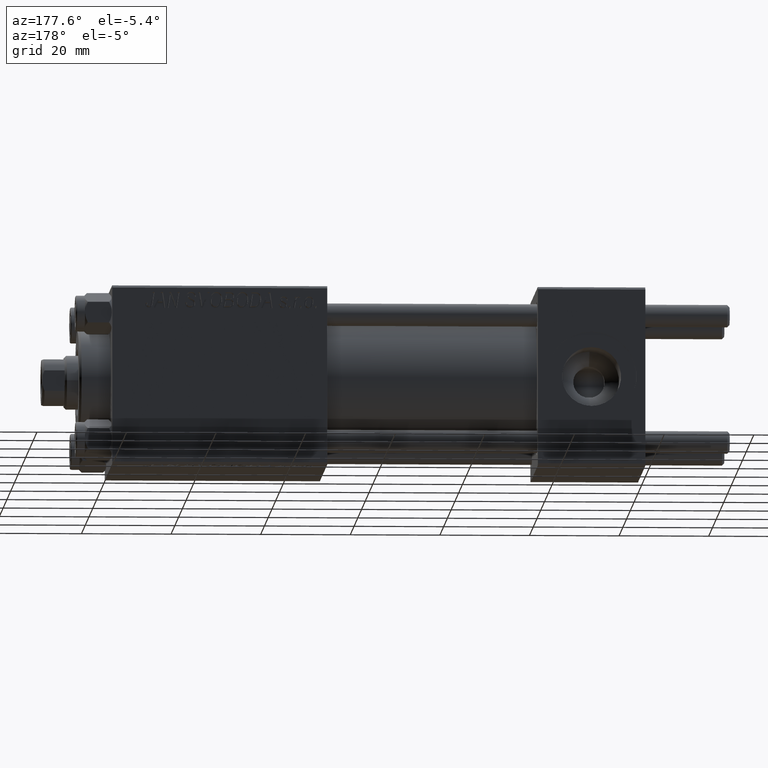
[diagram: clean part render]
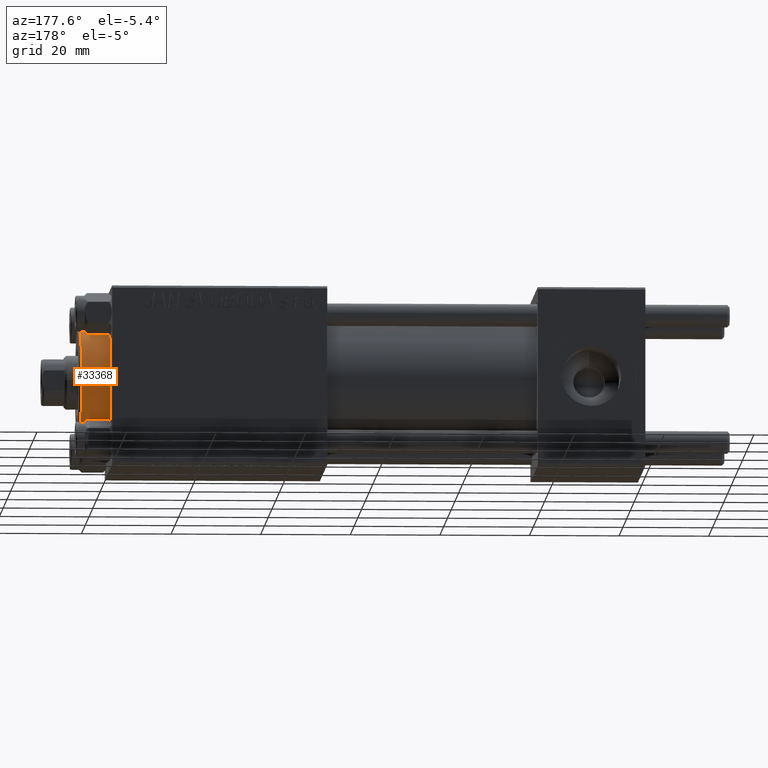
[diagram: same view with one face highlighted and labeled with its STEP entity id]
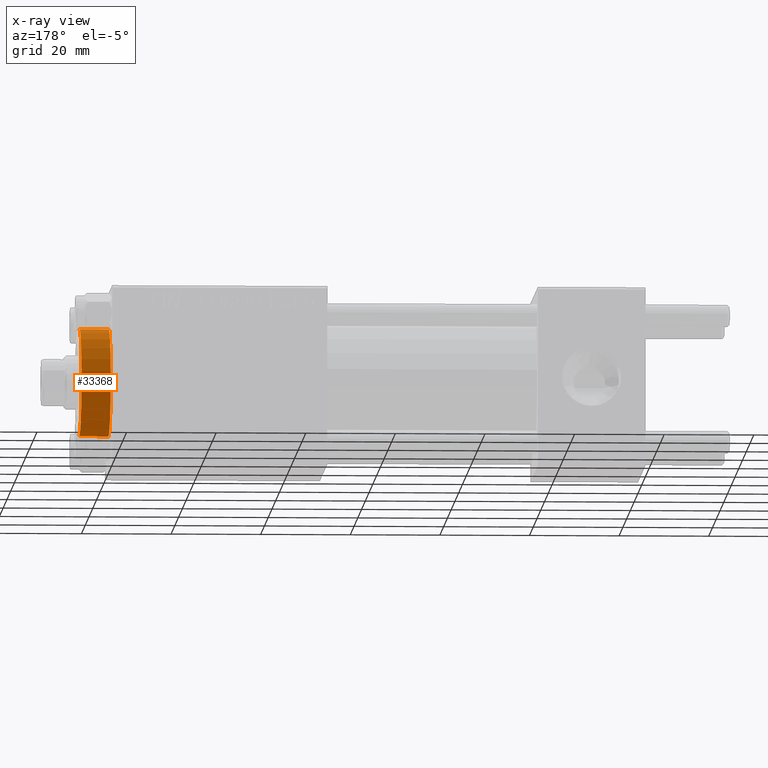
[diagram: x-ray of the same camera — body ghosted, the highlighted face saturated]
A machine part, auxiliary view. The second image highlights one B-rep face of the part: STEP entity #33368.
The next image is the same camera in x-ray: the body ghosted, the highlighted face saturated — about 0% of this face is hidden behind the body in this view.
In plain terms, the highlighted cylindrical surface (partial cylindrical patch) has radius 12 mm, axis along (-1, -0, 0).
Its self-contained STEP definition (entity closure, byte-faithful):
#426 = VECTOR ( 'NONE', #20489, 1000.000000000000000 ) ;
#3116 = AXIS2_PLACEMENT_3D ( 'NONE', #36482, #21129, #35479 ) ;
#3813 = ORIENTED_EDGE ( 'NONE', *, *, #49336, .F. ) ;
#4036 = VERTEX_POINT ( 'NONE', #39237 ) ;
#4254 = CARTESIAN_POINT ( 'NONE',  ( 0.000000000000000000, 0.000000000000000000, 35.70000000000000284 ) ) ;
#5868 = EDGE_CURVE ( 'NONE', #16551, #10612, #20742, .T. ) ;
#8293 = CARTESIAN_POINT ( 'NONE',  ( 0.000000000000000000, 0.000000000000000000, 35.19999999999999574 ) ) ;
#8751 = CIRCLE ( 'NONE', #3116, 12.00000000000000178 ) ;
#10612 = VERTEX_POINT ( 'NONE', #49439 ) ;
#11696 = CARTESIAN_POINT ( 'NONE',  ( 12.00000000000000178, 1.469576158976824144E-15, 35.19999999999999574 ) ) ;
#12940 = ORIENTED_EDGE ( 'NONE', *, *, #33328, .T. ) ;
#15250 = ORIENTED_EDGE ( 'NONE', *, *, #5868, .T. ) ;
#16551 = VERTEX_POINT ( 'NONE', #11696 ) ;
#17915 = CARTESIAN_POINT ( 'NONE',  ( 12.00000000000000178, 1.469576158976824144E-15, 35.70000000000000284 ) ) ;
#18240 = EDGE_LOOP ( 'NONE', ( #12940, #15250, #21184, #3813 ) ) ;
#19375 = CYLINDRICAL_SURFACE ( 'NONE', #33120, 12.00000000000000178 ) ;
#20489 = DIRECTION ( 'NONE',  ( -0.000000000000000000, -0.000000000000000000, -1.000000000000000000 ) ) ;
#20742 = LINE ( 'NONE', #17915, #426 ) ;
#21129 = DIRECTION ( 'NONE',  ( 0.000000000000000000, 0.000000000000000000, 1.000000000000000000 ) ) ;
#21184 = ORIENTED_EDGE ( 'NONE', *, *, #22870, .T. ) ;
#21675 = CARTESIAN_POINT ( 'NONE',  ( -12.00000000000000178, 0.000000000000000000, 35.70000000000000284 ) ) ;
#21918 = DIRECTION ( 'NONE',  ( -0.000000000000000000, -0.000000000000000000, -1.000000000000000000 ) ) ;
#22870 = EDGE_CURVE ( 'NONE', #10612, #4036, #8751, .T. ) ;
#23144 = DIRECTION ( 'NONE',  ( 0.000000000000000000, 0.000000000000000000, -1.000000000000000000 ) ) ;
#31457 = AXIS2_PLACEMENT_3D ( 'NONE', #8293, #23144, #49591 ) ;
#33120 = AXIS2_PLACEMENT_3D ( 'NONE', #4254, #34232, #34729 ) ;
#33328 = EDGE_CURVE ( 'NONE', #38763, #16551, #40310, .T. ) ;
#33368 = ADVANCED_FACE ( 'NONE', ( #38505 ), #19375, .T. ) ;
#33736 = LINE ( 'NONE', #21675, #37187 ) ;
#34232 = DIRECTION ( 'NONE',  ( -0.000000000000000000, -0.000000000000000000, -1.000000000000000000 ) ) ;
#34729 = DIRECTION ( 'NONE',  ( -1.000000000000000000, 0.000000000000000000, 0.000000000000000000 ) ) ;
#35479 = DIRECTION ( 'NONE',  ( 1.000000000000000000, 0.000000000000000000, 0.000000000000000000 ) ) ;
#36482 = CARTESIAN_POINT ( 'NONE',  ( 0.000000000000000000, 0.000000000000000000, 28.69999999999999929 ) ) ;
#37187 = VECTOR ( 'NONE', #21918, 1000.000000000000000 ) ;
#38505 = FACE_OUTER_BOUND ( 'NONE', #18240, .T. ) ;
#38763 = VERTEX_POINT ( 'NONE', #48083 ) ;
#39237 = CARTESIAN_POINT ( 'NONE',  ( -12.00000000000000178, 0.000000000000000000, 28.69999999999999929 ) ) ;
#40310 = CIRCLE ( 'NONE', #31457, 12.00000000000000178 ) ;
#48083 = CARTESIAN_POINT ( 'NONE',  ( -12.00000000000000178, 0.000000000000000000, 35.19999999999999574 ) ) ;
#49336 = EDGE_CURVE ( 'NONE', #38763, #4036, #33736, .T. ) ;
#49439 = CARTESIAN_POINT ( 'NONE',  ( 12.00000000000000178, 1.469576158976824144E-15, 28.69999999999999929 ) ) ;
#49591 = DIRECTION ( 'NONE',  ( 1.000000000000000000, 0.000000000000000000, 0.000000000000000000 ) ) ;